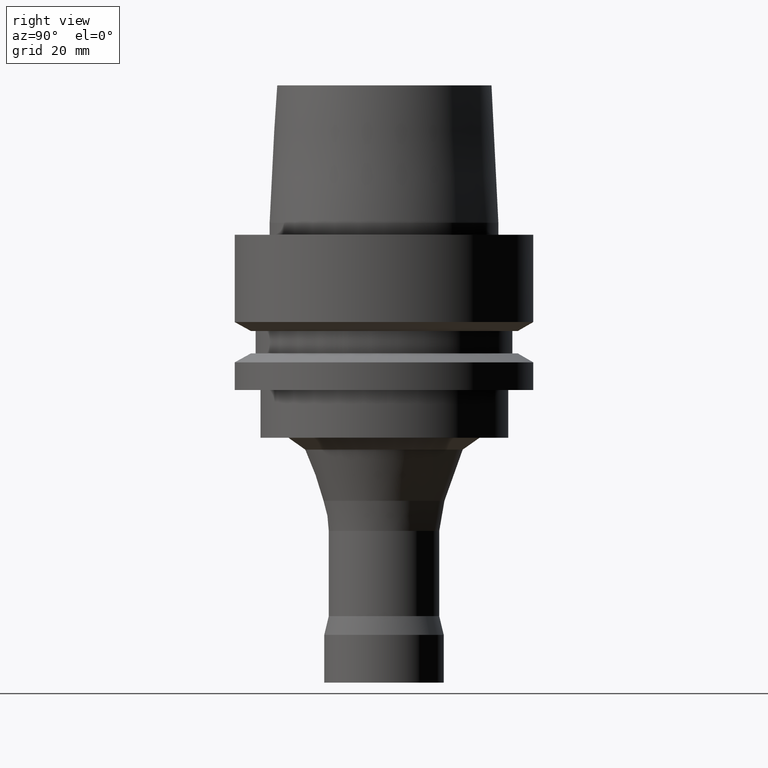
[diagram: clean part render]
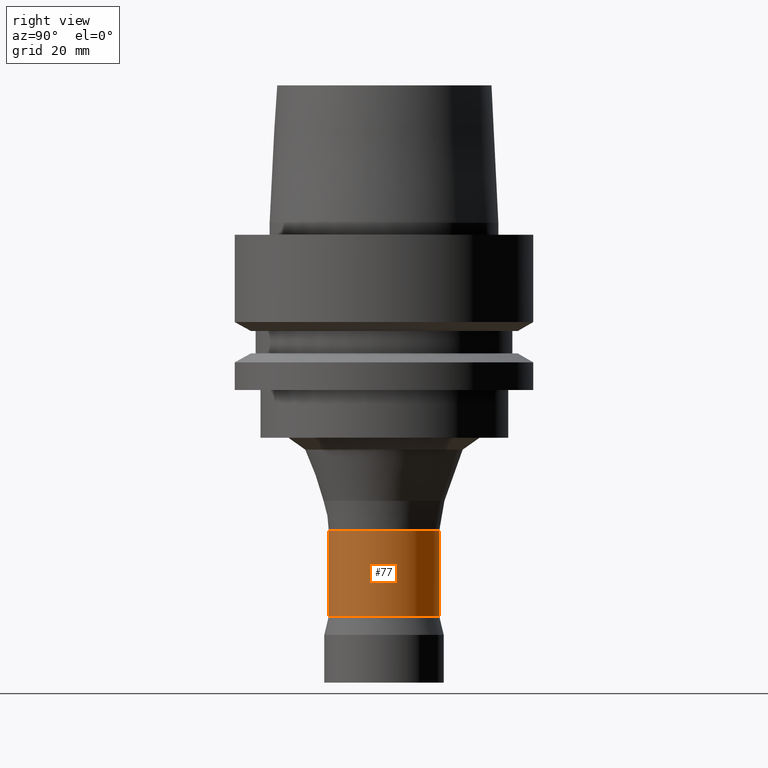
[diagram: same view with one face highlighted and labeled with its STEP entity id]
A machine part, right view. The second image highlights one B-rep face of the part: STEP entity #77.
In plain terms, the highlighted cylindrical surface (bore or boss wall) has radius 9.25 mm, axis along (-0, -0, 1).
Its self-contained STEP definition (entity closure, byte-faithful):
#77=ADVANCED_FACE('',(#103,#104),#105,.T.);
#103=FACE_BOUND('',#164,.T.);
#104=FACE_BOUND('',#165,.T.);
#105=CYLINDRICAL_SURFACE('',#166,9.25);
#164=EDGE_LOOP('',(#229));
#165=EDGE_LOOP('',(#230));
#166=AXIS2_PLACEMENT_3D('',#231,#232,#233);
#229=ORIENTED_EDGE('',*,*,#325,.F.);
#230=ORIENTED_EDGE('',*,*,#324,.T.);
#231=CARTESIAN_POINT('',(3.47400348975348E-015,6.94800697950695E-015,-56.734782505));
#232=DIRECTION('',(-6.12323399573677E-017,-1.22464679914735E-016,1.0));
#233=DIRECTION('',(-1.23259516440783E-032,1.0,1.22464679914735E-016));
#324=EDGE_CURVE('',#346,#346,#347,.T.);
#325=EDGE_CURVE('',#348,#348,#349,.T.);
#346=VERTEX_POINT('',#386);
#347=CIRCLE('',#387,9.25);
#348=VERTEX_POINT('',#388);
#349=CIRCLE('',#389,9.25);
#386=CARTESIAN_POINT('',(3.0367468602618E-015,9.25000000000001,-49.59383983));
#387=AXIS2_PLACEMENT_3D('',#428,#429,#430);
#388=CARTESIAN_POINT('',(3.91126011924515E-015,9.25000000000001,-63.87572518));
#389=AXIS2_PLACEMENT_3D('',#431,#432,#433);
#428=CARTESIAN_POINT('',(3.0367468602618E-015,6.0734937205236E-015,-49.59383983));
#429=DIRECTION('',(6.12323399573677E-017,1.22464679914735E-016,-1.0));
#430=DIRECTION('',(-1.23259516440783E-032,1.0,1.22464679914735E-016));
#431=CARTESIAN_POINT('',(3.91126011924515E-015,7.8225202384903E-015,-63.87572518));
#432=DIRECTION('',(6.12323399573677E-017,1.22464679914735E-016,-1.0));
#433=DIRECTION('',(-1.23259516440783E-032,1.0,1.22464679914735E-016));